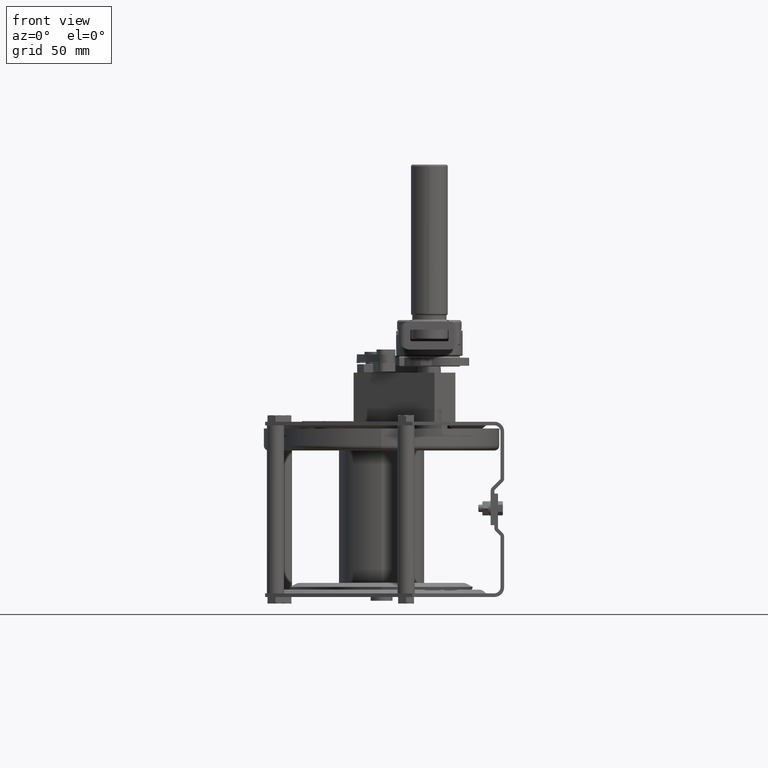
[diagram: clean part render]
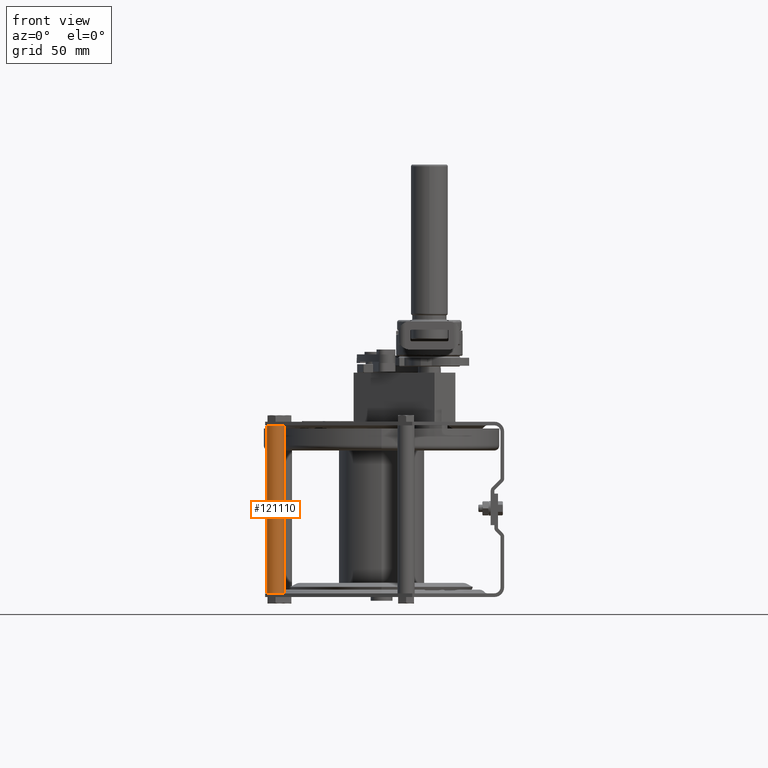
[diagram: same view with one face highlighted and labeled with its STEP entity id]
A machine part, front view. The second image highlights one B-rep face of the part: STEP entity #121110.
In plain terms, the highlighted cylindrical surface (edge-blend (fillet) strip) has radius 7 mm, axis along (0, 0, 1).
Its self-contained STEP definition (entity closure, byte-faithful):
#100150=CARTESIAN_POINT('',(-167.468345091884,-196.732984697892,
92.1110570155016));
#100160=VERTEX_POINT('',#100150);
#100190=CARTESIAN_POINT('',(-167.468345091884,-200.918201438849,86.5));
#100200=DIRECTION('',(-1.,0.,0.));
#100210=DIRECTION('',(0.,0.,-1.));
#100220=AXIS2_PLACEMENT_3D('',#100190,#100200,#100210);
#100230=CIRCLE('',#100220,7.);
#100240=CARTESIAN_POINT('',(-167.468345091884,-200.918201438849,93.5));
#100250=VERTEX_POINT('',#100240);
#100260=EDGE_CURVE('',#100250,#100160,#100230,.T.);
#100280=CARTESIAN_POINT('',(-167.468345091884,-200.918201438849,79.5));
#100290=VERTEX_POINT('',#100280);
#100320=CARTESIAN_POINT('',(-167.468345091884,-193.97388450105,
87.381170963773));
#100330=VERTEX_POINT('',#100320);
#100340=EDGE_CURVE('',#100330,#100290,#100230,.T.);
#103180=CARTESIAN_POINT('',(-30.4683450918841,-193.97388450105,
87.381170963773));
#103190=VERTEX_POINT('',#103180);
#103220=CARTESIAN_POINT('',(-30.4683450918841,-200.918201438849,86.5));
#103230=DIRECTION('',(-1.,0.,0.));
#103240=DIRECTION('',(0.,0.,-1.));
#103250=AXIS2_PLACEMENT_3D('',#103220,#103230,#103240);
#103260=CIRCLE('',#103250,7.);
#103270=CARTESIAN_POINT('',(-30.4683450918841,-200.918201438849,79.5));
#103280=VERTEX_POINT('',#103270);
#103290=EDGE_CURVE('',#103190,#103280,#103260,.T.);
#103310=CARTESIAN_POINT('',(-30.4683450918841,-200.918201438849,93.5));
#103320=VERTEX_POINT('',#103310);
#103350=CARTESIAN_POINT('',(-30.4683450918841,-196.732984697892,
92.1110570155016));
#103360=VERTEX_POINT('',#103350);
#103370=EDGE_CURVE('',#103320,#103360,#103260,.T.);
#120740=CARTESIAN_POINT('',(-30.4683450918841,-200.918201438849,86.5));
#120750=DIRECTION('',(-1.,0.,0.));
#120760=DIRECTION('',(0.,0.,-1.));
#120770=AXIS2_PLACEMENT_3D('',#120740,#120750,#120760);
#120780=CYLINDRICAL_SURFACE('',#120770,7.);
#120790=CARTESIAN_POINT('',(-167.468345091884,-200.918201438849,86.5));
#120800=DIRECTION('',(-1.,0.,0.));
#120810=DIRECTION('',(0.,0.,-1.));
#120820=AXIS2_PLACEMENT_3D('',#120790,#120800,#120810);
#120830=CIRCLE('',#120820,7.);
#120840=EDGE_CURVE('',#100160,#100330,#120830,.T.);
#120850=ORIENTED_EDGE('',*,*,#120840,.F.);
#120860=ORIENTED_EDGE('',*,*,#100340,.F.);
#120870=CARTESIAN_POINT('',(-30.4683450918841,-200.918201438849,79.5));
#120880=DIRECTION('',(-1.,0.,0.));
#120890=VECTOR('',#120880,1.);
#120900=LINE('',#120870,#120890);
#120910=EDGE_CURVE('',#103280,#100290,#120900,.T.);
#120920=ORIENTED_EDGE('',*,*,#120910,.T.);
#120930=ORIENTED_EDGE('',*,*,#103290,.T.);
#120940=CARTESIAN_POINT('',(-30.4683450918841,-200.918201438849,86.5));
#120950=DIRECTION('',(-1.,0.,0.));
#120960=DIRECTION('',(0.,0.,-1.));
#120970=AXIS2_PLACEMENT_3D('',#120940,#120950,#120960);
#120980=CIRCLE('',#120970,7.);
#120990=EDGE_CURVE('',#103360,#103190,#120980,.T.);
#121000=ORIENTED_EDGE('',*,*,#120990,.T.);
#121010=ORIENTED_EDGE('',*,*,#103370,.T.);
#121020=CARTESIAN_POINT('',(-30.4683450918841,-200.918201438849,93.5));
#121030=DIRECTION('',(-1.,0.,0.));
#121040=VECTOR('',#121030,1.);
#121050=LINE('',#121020,#121040);
#121060=EDGE_CURVE('',#103320,#100250,#121050,.T.);
#121070=ORIENTED_EDGE('',*,*,#121060,.F.);
#121080=ORIENTED_EDGE('',*,*,#100260,.F.);
#121090=EDGE_LOOP('',(#121080,#121070,#121010,#121000,#120930,#120920,
#120860,#120850));
#121100=FACE_OUTER_BOUND('',#121090,.T.);
#121110=ADVANCED_FACE('',(#121100),#120780,.T.);